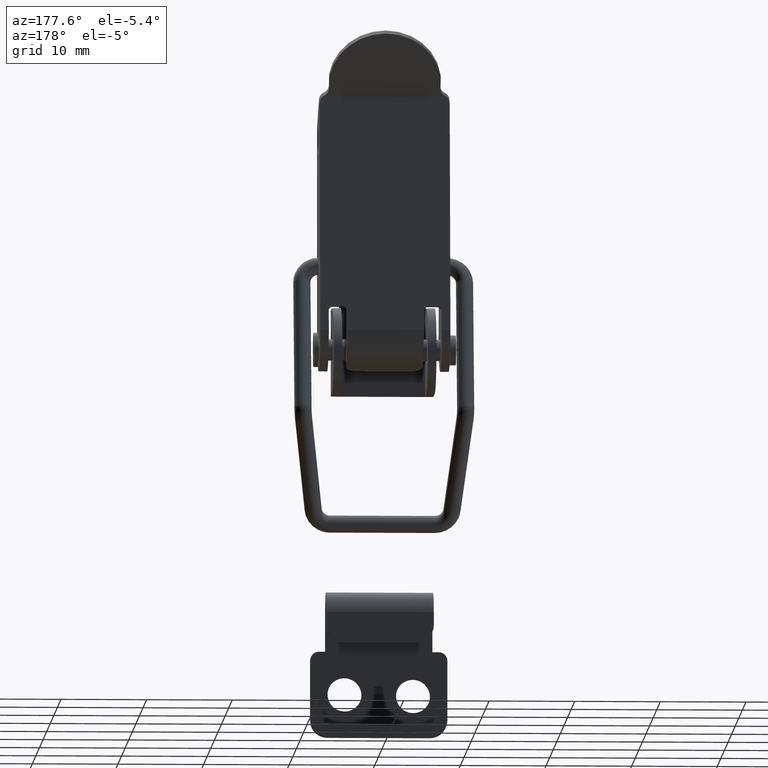
[diagram: clean part render]
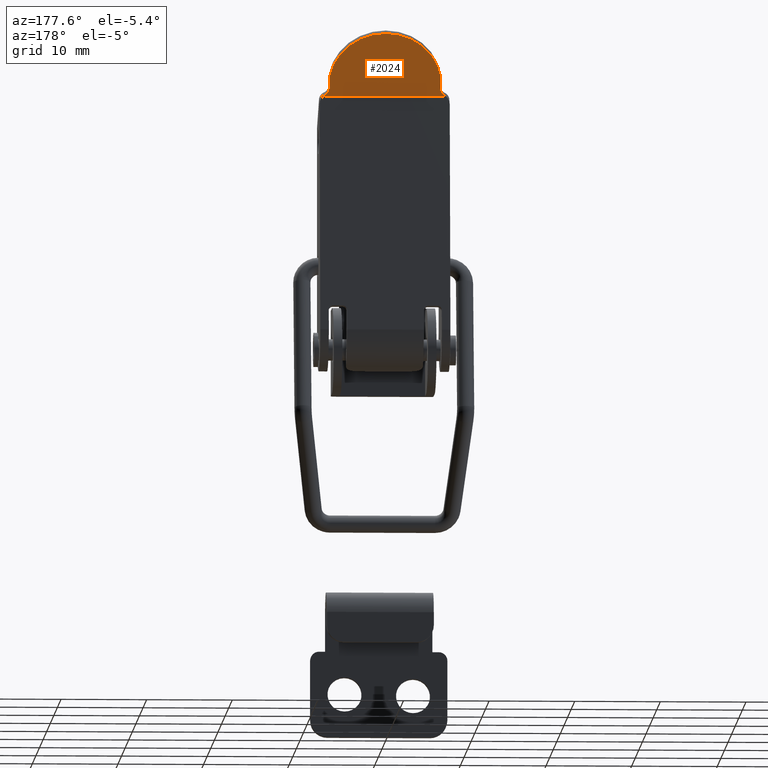
[diagram: same view with one face highlighted and labeled with its STEP entity id]
A machine part, auxiliary view. The second image highlights one B-rep face of the part: STEP entity #2024.
In plain terms, the highlighted planar face has unit normal (-0, 0.8682, -0.4961).
Its self-contained STEP definition (entity closure, byte-faithful):
#89=PLANE('',#2199);
#185=LINE('',#3239,#338);
#196=LINE('',#3273,#349);
#197=LINE('',#3277,#350);
#338=VECTOR('',#2590,14.4363077608724);
#349=VECTOR('',#2615,1.5);
#350=VECTOR('',#2618,1.5);
#529=FACE_OUTER_BOUND('',#667,.T.);
#667=EDGE_LOOP('',(#1589,#1590,#1591,#1592,#1593,#1594,#1595,#1596));
#825=CIRCLE('',#2185,1.);
#834=CIRCLE('',#2200,1.);
#835=CIRCLE('',#2201,6.57904708577152);
#836=CIRCLE('',#2202,1.);
#837=CIRCLE('',#2203,1.);
#968=VERTEX_POINT('',#3214);
#969=VERTEX_POINT('',#3216);
#978=VERTEX_POINT('',#3238);
#993=VERTEX_POINT('',#3270);
#994=VERTEX_POINT('',#3272);
#995=VERTEX_POINT('',#3274);
#996=VERTEX_POINT('',#3276);
#997=VERTEX_POINT('',#3278);
#1194=EDGE_CURVE('',#968,#969,#825,.T.);
#1205=EDGE_CURVE('',#978,#969,#185,.T.);
#1221=EDGE_CURVE('',#968,#993,#834,.F.);
#1222=EDGE_CURVE('',#993,#994,#196,.T.);
#1223=EDGE_CURVE('',#994,#995,#835,.T.);
#1224=EDGE_CURVE('',#995,#996,#197,.T.);
#1225=EDGE_CURVE('',#996,#997,#836,.F.);
#1226=EDGE_CURVE('',#978,#997,#837,.T.);
#1589=ORIENTED_EDGE('',*,*,#1194,.F.);
#1590=ORIENTED_EDGE('',*,*,#1221,.T.);
#1591=ORIENTED_EDGE('',*,*,#1222,.T.);
#1592=ORIENTED_EDGE('',*,*,#1223,.T.);
#1593=ORIENTED_EDGE('',*,*,#1224,.T.);
#1594=ORIENTED_EDGE('',*,*,#1225,.T.);
#1595=ORIENTED_EDGE('',*,*,#1226,.F.);
#1596=ORIENTED_EDGE('',*,*,#1205,.T.);
#2024=ADVANCED_FACE('',(#529),#89,.T.);
#2185=AXIS2_PLACEMENT_3D('',#3217,#2568,#2569);
#2199=AXIS2_PLACEMENT_3D('',#3269,#2611,#2612);
#2200=AXIS2_PLACEMENT_3D('',#3271,#2613,#2614);
#2201=AXIS2_PLACEMENT_3D('',#3275,#2616,#2617);
#2202=AXIS2_PLACEMENT_3D('',#3279,#2619,#2620);
#2203=AXIS2_PLACEMENT_3D('',#3280,#2621,#2622);
#2568=DIRECTION('center_axis',(0.,-0.868243142124459,0.496138938356834));
#2569=DIRECTION('ref_axis',(1.,0.,0.));
#2590=DIRECTION('',(-1.,0.,0.));
#2611=DIRECTION('center_axis',(0.,0.868243142124459,-0.496138938356834));
#2612=DIRECTION('ref_axis',(0.,0.496138938356834,0.868243142124459));
#2613=DIRECTION('center_axis',(0.,0.868243142124459,-0.496138938356834));
#2614=DIRECTION('ref_axis',(0.707106781186549,-0.350823207722812,-0.613940613514918));
#2615=DIRECTION('',(0.,0.496138938356834,0.868243142124459));
#2616=DIRECTION('center_axis',(0.,0.868243142124459,-0.496138938356834));
#2617=DIRECTION('ref_axis',(0.987985025074152,-0.0766780927161018,-0.134186662253178));
#2618=DIRECTION('',(0.,-0.496138938356834,-0.868243142124459));
#2619=DIRECTION('center_axis',(0.,0.868243142124459,-0.496138938356834));
#2620=DIRECTION('ref_axis',(-0.707106781186549,-0.350823207722813,-0.613940613514919));
#2621=DIRECTION('center_axis',(0.,-0.868243142124459,0.496138938356834));
#2622=DIRECTION('ref_axis',(-1.,0.,0.));
#3214=CARTESIAN_POINT('',(-7.05,7.05307269916941,27.5928772235465));
#3216=CARTESIAN_POINT('',(-7.21815388043621,7.,27.5));
#3217=CARTESIAN_POINT('Origin',(-6.6,6.61000645998198,26.8175113049685));
#3238=CARTESIAN_POINT('',(7.21815388043621,7.,27.5));
#3239=CARTESIAN_POINT('',(0.,7.,27.5));
#3269=CARTESIAN_POINT('Origin',(0.,7.,27.5));
#3270=CARTESIAN_POINT('',(-6.5,7.49613893835683,28.3682431421245));
#3271=CARTESIAN_POINT('Origin',(-7.5,7.49613893835683,28.3682431421245));
#3272=CARTESIAN_POINT('',(-6.5,8.24034734589209,29.6706078553111));
#3273=CARTESIAN_POINT('',(-6.5,7.,27.5));
#3274=CARTESIAN_POINT('',(6.5,8.24034734589209,29.6706078553111));
#3275=CARTESIAN_POINT('Origin',(0.,7.7358785634657,28.787787486065));
#3276=CARTESIAN_POINT('',(6.5,7.49613893835683,28.3682431421245));
#3277=CARTESIAN_POINT('',(6.5,7.62017367294604,28.5853039276556));
#3278=CARTESIAN_POINT('',(7.05,7.05307269916941,27.5928772235465));
#3279=CARTESIAN_POINT('Origin',(7.5,7.49613893835683,28.3682431421245));
#3280=CARTESIAN_POINT('Origin',(6.6,6.61000645998198,26.8175113049685));